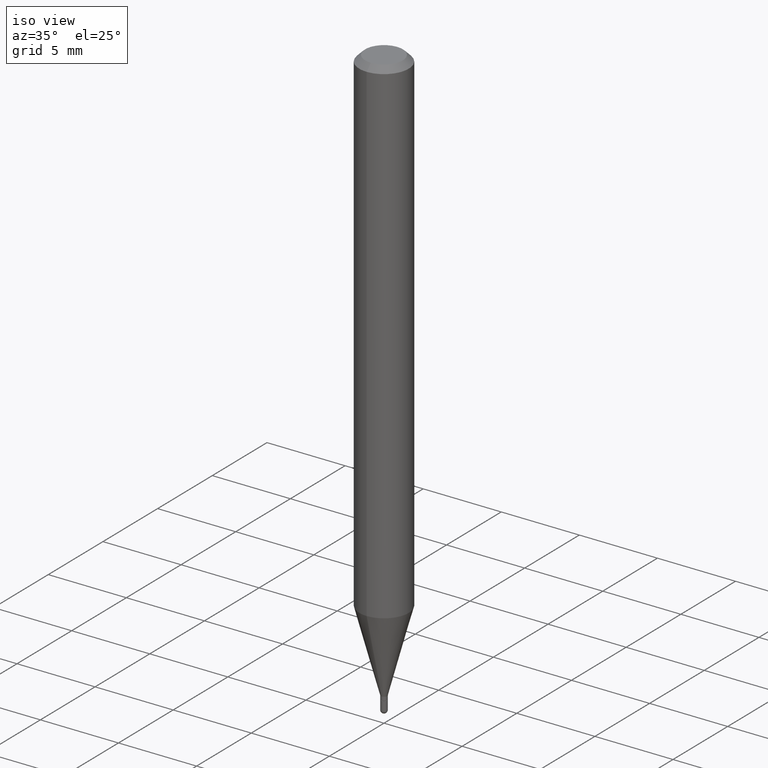
[diagram: clean part render]
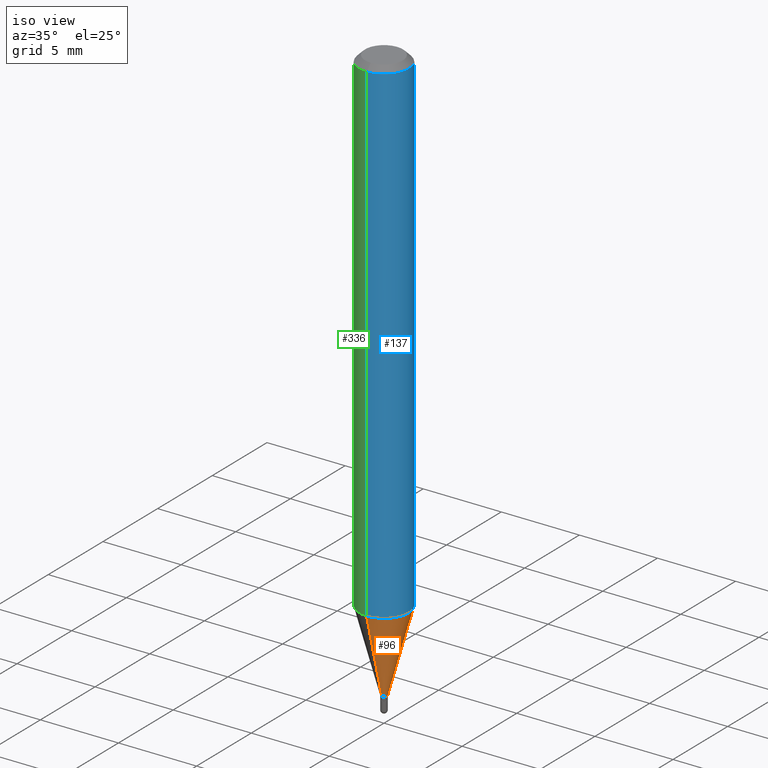
[diagram: same view with three faces highlighted in distinct colors, each labeled with its STEP entity id]
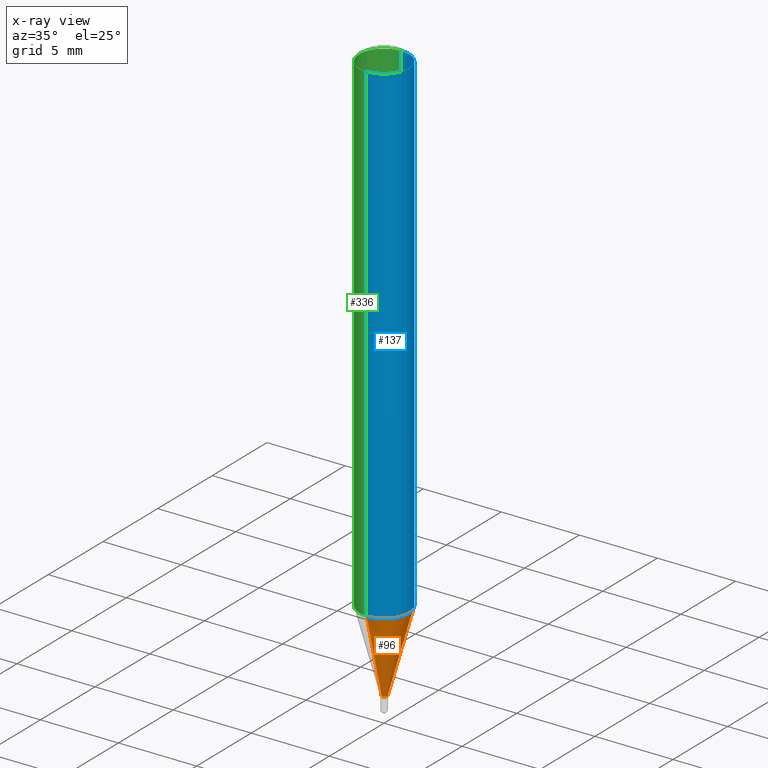
[diagram: x-ray of the same camera — body ghosted, the three highlighted faces saturated]
A machine part, iso view with three faces highlighted in distinct colors.
The next image is the same camera in x-ray (body ghosted, the three faces saturated) — at least one of them is partly hidden behind the body in this view.
Their STEP definitions:

[orange] entity #96 — the highlighted conical surface has half-angle 15 deg.
#40 = VERTEX_POINT ( 'NONE', #97 ) ;
#44 = VERTEX_POINT ( 'NONE', #332 ) ;
#60 = ORIENTED_EDGE ( 'NONE', *, *, #466, .F. ) ;
#65 = DIRECTION ( 'NONE',  ( -2.445232611711644986E-29, 3.491819582772540088E-15, 1.000000000000000000 ) ) ;
#77 = EDGE_CURVE ( 'NONE', #160, #388, #151, .T. ) ;
#96 = ADVANCED_FACE ( 'NONE', ( #369 ), #157, .T. ) ;
#97 = CARTESIAN_POINT ( 'NONE',  ( -4.364351673553610024E-16, -0.06250000000000438538, -1.254856820825982933 ) ) ;
#111 = ORIENTED_EDGE ( 'NONE', *, *, #497, .F. ) ;
#132 = DIRECTION ( 'NONE',  ( -6.982962677686265922E-15, -1.000000000000000000, 0.000000000000000000 ) ) ;
#151 = CIRCLE ( 'NONE', #206, 0.007799999999999922447 ) ;
#156 = EDGE_CURVE ( 'NONE', #388, #44, #455, .T. ) ;
#157 = CONICAL_SURFACE ( 'NONE', #265, 0.007799999999999922447, 0.2617993877991502960 ) ;
#160 = VERTEX_POINT ( 'NONE', #170 ) ;
#162 = DIRECTION ( 'NONE',  ( -6.982962677686265922E-15, -1.000000000000000000, 0.000000000000000000 ) ) ;
#170 = CARTESIAN_POINT ( 'NONE',  ( -5.446710888591665753E-17, -0.007800000000005017330, -1.459000000000000297 ) ) ;
#175 = AXIS2_PLACEMENT_3D ( 'NONE', #242, #65, #339 ) ;
#206 = AXIS2_PLACEMENT_3D ( 'NONE', #496, #208, #132 ) ;
#208 = DIRECTION ( 'NONE',  ( -2.445232611711644986E-29, 3.491819582772540088E-15, 1.000000000000000000 ) ) ;
#209 = LINE ( 'NONE', #489, #492 ) ;
#231 = ORIENTED_EDGE ( 'NONE', *, *, #77, .T. ) ;
#242 = CARTESIAN_POINT ( 'NONE',  ( 3.068416821312490744E-29, -4.381733620535860243E-15, -1.254856820825983155 ) ) ;
#265 = AXIS2_PLACEMENT_3D ( 'NONE', #286, #326, #162 ) ;
#286 = CARTESIAN_POINT ( 'NONE',  ( 3.567594380487290426E-29, -5.094564771265136885E-15, -1.459000000000000297 ) ) ;
#307 = CARTESIAN_POINT ( 'NONE',  ( 5.542233338932293475E-17, 0.007799999999994828431, -1.459000000000000297 ) ) ;
#316 = CARTESIAN_POINT ( 'NONE',  ( 2.497557716197082045E-16, 0.007799999999994826697, -1.459000000000000297 ) ) ;
#323 = CIRCLE ( 'NONE', #175, 0.06250000000000000000 ) ;
#326 = DIRECTION ( 'NONE',  ( -2.445232611711644986E-29, 3.491819582772540088E-15, 1.000000000000000000 ) ) ;
#332 = CARTESIAN_POINT ( 'NONE',  ( 4.440892098500930859E-16, 0.06249999999999560074, -1.254856820825983377 ) ) ;
#339 = DIRECTION ( 'NONE',  ( -6.982962677686265922E-15, -1.000000000000000000, 4.370956789862821150E-15 ) ) ;
#342 = DIRECTION ( 'NONE',  ( -1.807323732225330928E-15, -0.2588190451025182970, 0.9659258262890689783 ) ) ;
#345 = DIRECTION ( 'NONE',  ( 1.839019923739601104E-15, 0.2588190451025250693, 0.9659258262890670910 ) ) ;
#369 = FACE_OUTER_BOUND ( 'NONE', #384, .T. ) ;
#384 = EDGE_LOOP ( 'NONE', ( #231, #465, #60, #111 ) ) ;
#388 = VERTEX_POINT ( 'NONE', #316 ) ;
#455 = LINE ( 'NONE', #307, #490 ) ;
#465 = ORIENTED_EDGE ( 'NONE', *, *, #156, .T. ) ;
#466 = EDGE_CURVE ( 'NONE', #40, #44, #323, .T. ) ;
#489 = CARTESIAN_POINT ( 'NONE',  ( -5.446710888591665753E-17, -0.007800000000005017330, -1.459000000000000297 ) ) ;
#490 = VECTOR ( 'NONE', #345, 39.37007874015748143 ) ;
#492 = VECTOR ( 'NONE', #342, 39.37007874015748143 ) ;
#496 = CARTESIAN_POINT ( 'NONE',  ( 3.567594380487290426E-29, -5.094564771265136885E-15, -1.459000000000000297 ) ) ;
#497 = EDGE_CURVE ( 'NONE', #160, #40, #209, .T. ) ;

[blue] entity #137 — the highlighted cylindrical surface (edge-blend (fillet) strip) has radius 1.5875 mm, axis along (-0, 0, 1).
#13 = DIRECTION ( 'NONE',  ( -2.445232611711644986E-29, 3.491819582772540483E-15, 1.000000000000000000 ) ) ;
#16 = DIRECTION ( 'NONE',  ( -2.445232611711644986E-29, 3.491819582772540088E-15, 1.000000000000000000 ) ) ;
#40 = VERTEX_POINT ( 'NONE', #97 ) ;
#44 = VERTEX_POINT ( 'NONE', #332 ) ;
#50 = CIRCLE ( 'NONE', #225, 0.06250000000000000000 ) ;
#53 = CARTESIAN_POINT ( 'NONE',  ( 0.000000000000000000, 0.000000000000000000, 0.000000000000000000 ) ) ;
#65 = DIRECTION ( 'NONE',  ( -2.445232611711644986E-29, 3.491819582772540088E-15, 1.000000000000000000 ) ) ;
#76 = ORIENTED_EDGE ( 'NONE', *, *, #389, .F. ) ;
#80 = CARTESIAN_POINT ( 'NONE',  ( -4.364351673553916201E-16, -0.06250000000000000000, 2.182387239232837555E-16 ) ) ;
#87 = CARTESIAN_POINT ( 'NONE',  ( 4.440892098500625669E-16, 0.06250000000000000000, -2.182387239232837555E-16 ) ) ;
#92 = FACE_OUTER_BOUND ( 'NONE', #338, .T. ) ;
#94 = CARTESIAN_POINT ( 'NONE',  ( -4.364351673553912750E-16, -0.06250000000000005551, -0.01499999999999979128 ) ) ;
#97 = CARTESIAN_POINT ( 'NONE',  ( -4.364351673553610024E-16, -0.06250000000000438538, -1.254856820825982933 ) ) ;
#115 = EDGE_CURVE ( 'NONE', #44, #147, #486, .T. ) ;
#123 = VECTOR ( 'NONE', #407, 39.37007874015748143 ) ;
#137 = ADVANCED_FACE ( 'NONE', ( #92 ), #240, .T. ) ;
#147 = VERTEX_POINT ( 'NONE', #508 ) ;
#163 = DIRECTION ( 'NONE',  ( -6.982962677686265922E-15, -1.000000000000000000, 3.491819582772540088E-15 ) ) ;
#175 = AXIS2_PLACEMENT_3D ( 'NONE', #242, #65, #339 ) ;
#182 = EDGE_CURVE ( 'NONE', #471, #147, #50, .T. ) ;
#191 = AXIS2_PLACEMENT_3D ( 'NONE', #53, #16, #163 ) ;
#225 = AXIS2_PLACEMENT_3D ( 'NONE', #498, #356, #300 ) ;
#240 = CYLINDRICAL_SURFACE ( 'NONE', #191, 0.06250000000000000000 ) ;
#242 = CARTESIAN_POINT ( 'NONE',  ( 3.068416821312490744E-29, -4.381733620535860243E-15, -1.254856820825983155 ) ) ;
#300 = DIRECTION ( 'NONE',  ( -6.982962677686265922E-15, -1.000000000000000000, 3.483106191921935554E-15 ) ) ;
#301 = ORIENTED_EDGE ( 'NONE', *, *, #182, .F. ) ;
#323 = CIRCLE ( 'NONE', #175, 0.06250000000000000000 ) ;
#332 = CARTESIAN_POINT ( 'NONE',  ( 4.440892098500930859E-16, 0.06249999999999560074, -1.254856820825983377 ) ) ;
#338 = EDGE_LOOP ( 'NONE', ( #481, #431, #301, #76 ) ) ;
#339 = DIRECTION ( 'NONE',  ( -6.982962677686265922E-15, -1.000000000000000000, 4.370956789862821150E-15 ) ) ;
#344 = VECTOR ( 'NONE', #13, 39.37007874015748143 ) ;
#356 = DIRECTION ( 'NONE',  ( -2.445232611711644986E-29, 3.491819582772540088E-15, 1.000000000000000000 ) ) ;
#364 = LINE ( 'NONE', #80, #344 ) ;
#389 = EDGE_CURVE ( 'NONE', #40, #471, #364, .T. ) ;
#407 = DIRECTION ( 'NONE',  ( -2.445232611711644986E-29, 3.491819582772540483E-15, 1.000000000000000000 ) ) ;
#431 = ORIENTED_EDGE ( 'NONE', *, *, #115, .T. ) ;
#466 = EDGE_CURVE ( 'NONE', #40, #44, #323, .T. ) ;
#471 = VERTEX_POINT ( 'NONE', #94 ) ;
#481 = ORIENTED_EDGE ( 'NONE', *, *, #466, .T. ) ;
#486 = LINE ( 'NONE', #87, #123 ) ;
#498 = CARTESIAN_POINT ( 'NONE',  ( 3.667848917567469827E-31, -5.237729374158814249E-17, -0.01500000000000000812 ) ) ;
#508 = CARTESIAN_POINT ( 'NONE',  ( 4.440892098500934804E-16, 0.06249999999999995143, -0.01500000000000022669 ) ) ;

[green] entity #336 — the highlighted cylindrical surface (edge-blend (fillet) strip) has radius 1.5875 mm, axis along (-0, 0, 1).
#13 = DIRECTION ( 'NONE',  ( -2.445232611711644986E-29, 3.491819582772540483E-15, 1.000000000000000000 ) ) ;
#34 = EDGE_LOOP ( 'NONE', ( #428, #150, #107, #194 ) ) ;
#40 = VERTEX_POINT ( 'NONE', #97 ) ;
#44 = VERTEX_POINT ( 'NONE', #332 ) ;
#45 = FACE_OUTER_BOUND ( 'NONE', #34, .T. ) ;
#80 = CARTESIAN_POINT ( 'NONE',  ( -4.364351673553916201E-16, -0.06250000000000000000, 2.182387239232837555E-16 ) ) ;
#83 = DIRECTION ( 'NONE',  ( -6.982962677686265922E-15, -1.000000000000000000, 4.370956789862821150E-15 ) ) ;
#87 = CARTESIAN_POINT ( 'NONE',  ( 4.440892098500625669E-16, 0.06250000000000000000, -2.182387239232837555E-16 ) ) ;
#88 = DIRECTION ( 'NONE',  ( -6.982962677686265922E-15, -1.000000000000000000, 3.483106191921935554E-15 ) ) ;
#94 = CARTESIAN_POINT ( 'NONE',  ( -4.364351673553912750E-16, -0.06250000000000005551, -0.01499999999999979128 ) ) ;
#97 = CARTESIAN_POINT ( 'NONE',  ( -4.364351673553610024E-16, -0.06250000000000438538, -1.254856820825982933 ) ) ;
#107 = ORIENTED_EDGE ( 'NONE', *, *, #389, .T. ) ;
#115 = EDGE_CURVE ( 'NONE', #44, #147, #486, .T. ) ;
#120 = CYLINDRICAL_SURFACE ( 'NONE', #392, 0.06250000000000000000 ) ;
#123 = VECTOR ( 'NONE', #407, 39.37007874015748143 ) ;
#127 = DIRECTION ( 'NONE',  ( -2.445232611711644986E-29, 3.491819582772540088E-15, 1.000000000000000000 ) ) ;
#131 = AXIS2_PLACEMENT_3D ( 'NONE', #155, #272, #83 ) ;
#147 = VERTEX_POINT ( 'NONE', #508 ) ;
#150 = ORIENTED_EDGE ( 'NONE', *, *, #335, .T. ) ;
#155 = CARTESIAN_POINT ( 'NONE',  ( 3.068416821312490744E-29, -4.381733620535860243E-15, -1.254856820825983155 ) ) ;
#193 = CARTESIAN_POINT ( 'NONE',  ( 0.000000000000000000, 0.000000000000000000, 0.000000000000000000 ) ) ;
#194 = ORIENTED_EDGE ( 'NONE', *, *, #329, .F. ) ;
#257 = CIRCLE ( 'NONE', #131, 0.06250000000000000000 ) ;
#272 = DIRECTION ( 'NONE',  ( -2.445232611711644986E-29, 3.491819582772540088E-15, 1.000000000000000000 ) ) ;
#329 = EDGE_CURVE ( 'NONE', #147, #471, #483, .T. ) ;
#332 = CARTESIAN_POINT ( 'NONE',  ( 4.440892098500930859E-16, 0.06249999999999560074, -1.254856820825983377 ) ) ;
#335 = EDGE_CURVE ( 'NONE', #44, #40, #257, .T. ) ;
#336 = ADVANCED_FACE ( 'NONE', ( #45 ), #120, .T. ) ;
#344 = VECTOR ( 'NONE', #13, 39.37007874015748143 ) ;
#363 = CARTESIAN_POINT ( 'NONE',  ( 3.667848917567469827E-31, -5.237729374158814249E-17, -0.01500000000000000812 ) ) ;
#364 = LINE ( 'NONE', #80, #344 ) ;
#367 = DIRECTION ( 'NONE',  ( -2.445232611711644986E-29, 3.491819582772540088E-15, 1.000000000000000000 ) ) ;
#389 = EDGE_CURVE ( 'NONE', #40, #471, #364, .T. ) ;
#391 = AXIS2_PLACEMENT_3D ( 'NONE', #363, #127, #88 ) ;
#392 = AXIS2_PLACEMENT_3D ( 'NONE', #193, #367, #478 ) ;
#407 = DIRECTION ( 'NONE',  ( -2.445232611711644986E-29, 3.491819582772540483E-15, 1.000000000000000000 ) ) ;
#428 = ORIENTED_EDGE ( 'NONE', *, *, #115, .F. ) ;
#471 = VERTEX_POINT ( 'NONE', #94 ) ;
#478 = DIRECTION ( 'NONE',  ( -6.982962677686265922E-15, -1.000000000000000000, 3.491819582772540088E-15 ) ) ;
#483 = CIRCLE ( 'NONE', #391, 0.06250000000000000000 ) ;
#486 = LINE ( 'NONE', #87, #123 ) ;
#508 = CARTESIAN_POINT ( 'NONE',  ( 4.440892098500934804E-16, 0.06249999999999995143, -0.01500000000000022669 ) ) ;